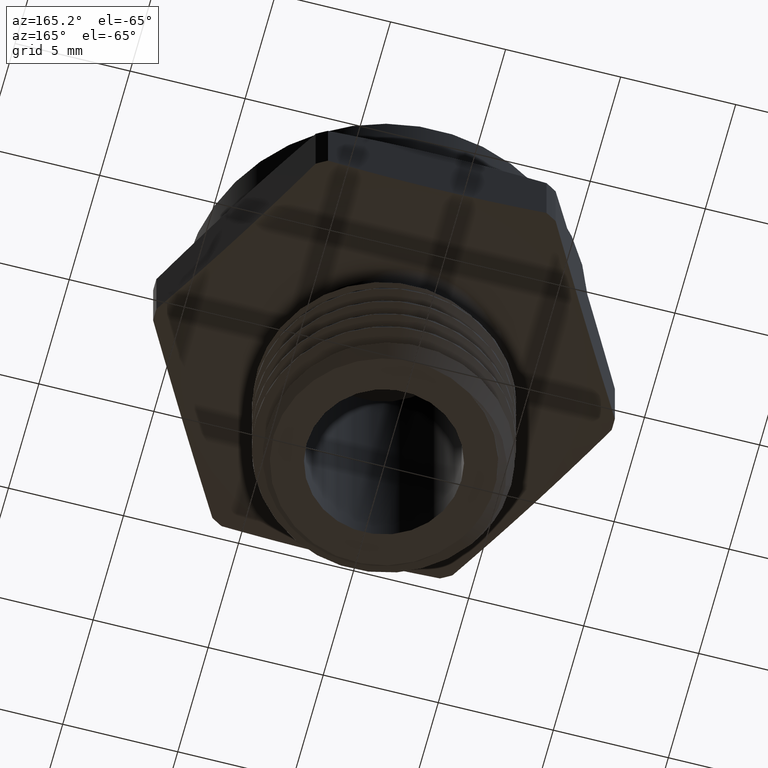
[diagram: clean part render]
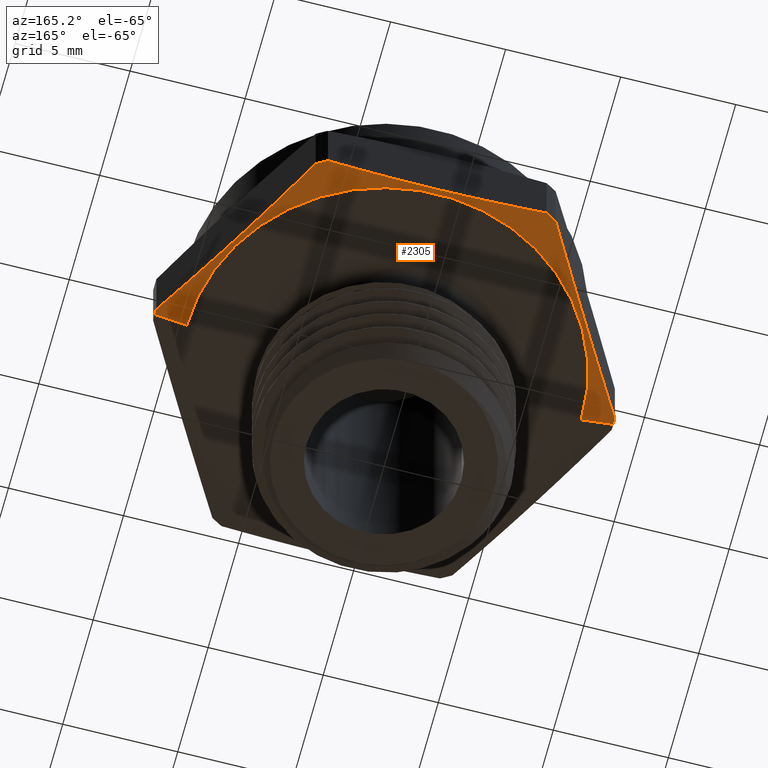
[diagram: same view with one face highlighted and labeled with its STEP entity id]
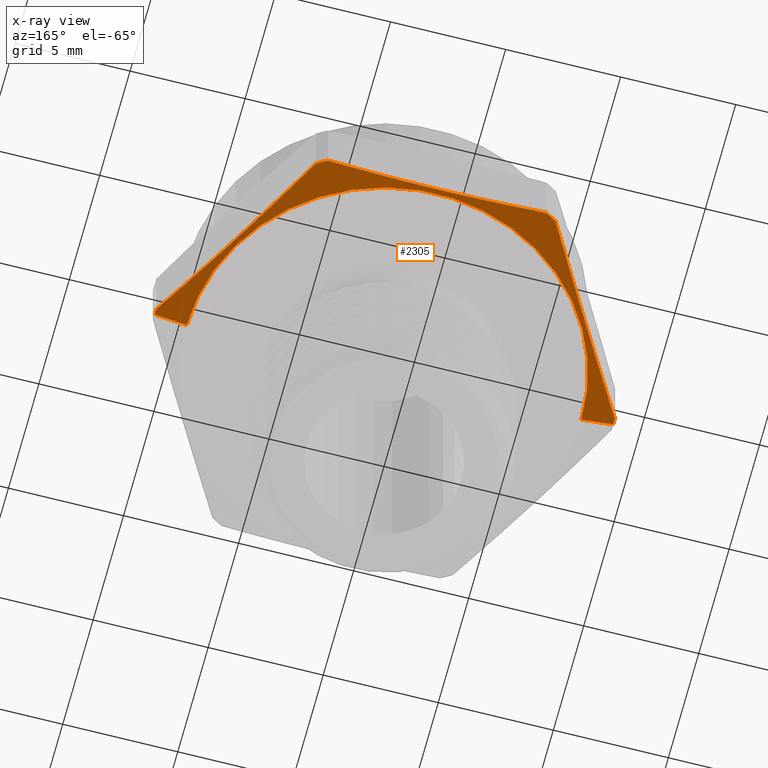
[diagram: x-ray of the same camera — body ghosted, the highlighted face saturated]
A machine part, auxiliary view. The second image highlights one B-rep face of the part: STEP entity #2305.
The next image is the same camera in x-ray: the body ghosted, the highlighted face saturated — about 0% of this face is hidden behind the body in this view.
In plain terms, the highlighted conical surface has half-angle 78 deg.
Its self-contained STEP definition (entity closure, byte-faithful):
#140 = FACE_OUTER_BOUND ( 'NONE', #242, .T. ) ;
#145 = CONICAL_SURFACE ( 'NONE', #2072, 0.3374999999999998000, 1.361356816555569600 ) ;
#182 = LINE ( 'NONE', #293, #186 ) ;
#185 = CIRCLE ( 'NONE', #2037, 0.3374999999999998000 ) ;
#186 = VECTOR ( 'NONE', #291, 39.37007874015748100 ) ;
#187 = CIRCLE ( 'NONE', #2038, 0.3923716857408415800 ) ;
#190 = CIRCLE ( 'NONE', #2042, 0.3923716857408415800 ) ;
#191 = CIRCLE ( 'NONE', #2041, 0.3923716857408415800 ) ;
#194 = CIRCLE ( 'NONE', #2043, 0.3923716857408415800 ) ;
#196 = LINE ( 'NONE', #322, #198 ) ;
#198 = VECTOR ( 'NONE', #318, 39.37007874015748100 ) ;
#242 = EDGE_LOOP ( 'NONE', ( #2782, #2783, #2784, #2785, #2786, #919, #920, #921, #922, #923 ) ) ;
#291 = DIRECTION ( 'NONE',  ( 0.9781476007338040200, 0.0000000000000000000, 0.2079116908177665300 ) ) ;
#293 = CARTESIAN_POINT ( 'NONE',  ( 0.3374999999999998000, 0.0000000000000000000, 0.0000000000000000000 ) ) ;
#297 = CARTESIAN_POINT ( 'NONE',  ( -0.3610778099297727300, 0.06459488771593470400, 0.005355784006606453800 ) ) ;
#298 = CARTESIAN_POINT ( 'NONE',  ( -0.2987787643056311600, 0.1724999999999996300, -0.002167435581555904200 ) ) ;
#299 = CARTESIAN_POINT ( 'NONE',  ( 5.061689266483738000E-033, 0.0000000000000000000, 4.133182947122303000E-017 ) ) ;
#300 = DIRECTION ( 'NONE',  ( -1.224646799147349800E-016, -0.0000000000000000000, -1.000000000000000000 ) ) ;
#301 = DIRECTION ( 'NONE',  ( -1.000000000000000000, 0.0000000000000000000, 1.224646799147349800E-016 ) ) ;
#302 = CARTESIAN_POINT ( 'NONE',  ( -0.3922273327418435700, 0.01064233157390219100, 0.01166333685411182100 ) ) ;
#303 = CARTESIAN_POINT ( 'NONE',  ( -0.2364797186814895600, 0.2804051122840647300, 0.005355784006606442500 ) ) ;
#304 = CARTESIAN_POINT ( 'NONE',  ( -0.2053301958694187200, 0.3343576684260971500, 0.01166333685411172200 ) ) ;
#306 = CARTESIAN_POINT ( 'NONE',  ( 1.428346814576530300E-018, 0.0000000000000000000, 0.01166333685411177200 ) ) ;
#307 = DIRECTION ( 'NONE',  ( -1.224646799147349800E-016, -0.0000000000000000000, -1.000000000000000000 ) ) ;
#308 = DIRECTION ( 'NONE',  ( -1.000000000000000000, 0.0000000000000000000, 1.251055960969031300E-016 ) ) ;
#318 = DIRECTION ( 'NONE',  ( -0.9781476007338040200, 1.197885328332316500E-016, 0.2079116908177667500 ) ) ;
#319 = CARTESIAN_POINT ( 'NONE',  ( 1.428346814576530300E-018, 0.0000000000000000000, 0.01166333685411177200 ) ) ;
#320 = DIRECTION ( 'NONE',  ( -1.224646799147349800E-016, -0.0000000000000000000, -1.000000000000000000 ) ) ;
#321 = DIRECTION ( 'NONE',  ( -1.000000000000000000, 0.0000000000000000000, 1.251055960969031300E-016 ) ) ;
#322 = CARTESIAN_POINT ( 'NONE',  ( -0.3374999999999998000, 4.133182947122314700E-017, 8.266365894244606000E-017 ) ) ;
#323 = CARTESIAN_POINT ( 'NONE',  ( 0.2364797186814898400, 0.2804051122840645100, 0.005355784006606438200 ) ) ;
#324 = CARTESIAN_POINT ( 'NONE',  ( 0.2987787643056312200, 0.1725000000000001800, -0.002167435581555885200 ) ) ;
#325 = CARTESIAN_POINT ( 'NONE',  ( 1.428346814576530300E-018, 0.0000000000000000000, 0.01166333685411177200 ) ) ;
#326 = DIRECTION ( 'NONE',  ( -1.224646799147349800E-016, -0.0000000000000000000, -1.000000000000000000 ) ) ;
#327 = DIRECTION ( 'NONE',  ( -1.000000000000000000, 0.0000000000000000000, 1.251055960969031300E-016 ) ) ;
#328 = CARTESIAN_POINT ( 'NONE',  ( 0.2053301958694191700, 0.3343576684260967700, 0.01166333685411174600 ) ) ;
#329 = CARTESIAN_POINT ( 'NONE',  ( 0.3610778099297729000, 0.06459488771593567500, 0.005355784006606413900 ) ) ;
#330 = CARTESIAN_POINT ( 'NONE',  ( 0.3922273327418435700, 0.01064233157390342100, 0.01166333685411172200 ) ) ;
#333 = CARTESIAN_POINT ( 'NONE',  ( 1.428346814576530300E-018, 0.0000000000000000000, 0.01166333685411177200 ) ) ;
#334 = DIRECTION ( 'NONE',  ( -1.224646799147349800E-016, -0.0000000000000000000, -1.000000000000000000 ) ) ;
#335 = DIRECTION ( 'NONE',  ( -1.000000000000000000, 0.0000000000000000000, 1.251055960969031300E-016 ) ) ;
#336 = CARTESIAN_POINT ( 'NONE',  ( -0.1245142236501595400, 0.3450000000000000300, 0.005960855220275375300 ) ) ;
#340 = CARTESIAN_POINT ( 'NONE',  ( -0.1557582013415370600, 0.3450000000000000300, 0.008510632354253096200 ) ) ;
#341 = CARTESIAN_POINT ( 'NONE',  ( -0.1868971368724244300, 0.3450000000000000300, 0.01166333685411179500 ) ) ;
#342 = CARTESIAN_POINT ( 'NONE',  ( -0.06212854920684172900, 0.3449999999999999200, 0.002498373263569564100 ) ) ;
#343 = CARTESIAN_POINT ( 'NONE',  ( -0.03095420502948804200, 0.3450000000000000800, 0.001590354296628857100 ) ) ;
#344 = CARTESIAN_POINT ( 'NONE',  ( 0.06250737541414196100, 0.3450000000000000300, 0.001601850883293445500 ) ) ;
#345 = CARTESIAN_POINT ( 'NONE',  ( 0.1247306372216187400, 0.3450000000000000800, 0.005369203806591569100 ) ) ;
#346 = CARTESIAN_POINT ( 'NONE',  ( 0.1868971368724243200, 0.3450000000000000300, 0.01166333685411172200 ) ) ;
#919 = ORIENTED_EDGE ( 'NONE', *, *, #1943, .T. ) ;
#920 = ORIENTED_EDGE ( 'NONE', *, *, #1940, .T. ) ;
#921 = ORIENTED_EDGE ( 'NONE', *, *, #1939, .T. ) ;
#922 = ORIENTED_EDGE ( 'NONE', *, *, #1937, .T. ) ;
#923 = ORIENTED_EDGE ( 'NONE', *, *, #1928, .F. ) ;
#1720 = DIRECTION ( 'NONE',  ( 1.000000000000000000, 0.0000000000000000000, -1.224646799147349800E-016 ) ) ;
#1721 = CARTESIAN_POINT ( 'NONE',  ( 5.061689266483738000E-033, 0.0000000000000000000, 4.133182947122303000E-017 ) ) ;
#1722 = DIRECTION ( 'NONE',  ( 1.224646799147349800E-016, 0.0000000000000000000, 1.000000000000000000 ) ) ;
#1766 = CARTESIAN_POINT ( 'NONE',  ( 0.3923716857408415800, 0.0000000000000000000, 0.01166333685411172600 ) ) ;
#1767 = CARTESIAN_POINT ( 'NONE',  ( 0.3922273327418435700, 0.01064233157390342100, 0.01166333685411172200 ) ) ;
#1768 = CARTESIAN_POINT ( 'NONE',  ( 0.2053301958694191700, 0.3343576684260967700, 0.01166333685411174600 ) ) ;
#1769 = CARTESIAN_POINT ( 'NONE',  ( 0.1868971368724243200, 0.3450000000000000300, 0.01166333685411172200 ) ) ;
#1770 = CARTESIAN_POINT ( 'NONE',  ( -0.1868971368724244300, 0.3450000000000000300, 0.01166333685411179500 ) ) ;
#1772 = CARTESIAN_POINT ( 'NONE',  ( -0.2053301958694187200, 0.3343576684260971500, 0.01166333685411172200 ) ) ;
#1773 = CARTESIAN_POINT ( 'NONE',  ( -0.3922273327418435700, 0.01064233157390219100, 0.01166333685411182100 ) ) ;
#1774 = CARTESIAN_POINT ( 'NONE',  ( -0.3923716857408415800, 0.0000000000000000000, 0.01166333685411182100 ) ) ;
#1776 = CARTESIAN_POINT ( 'NONE',  ( 0.3374999999999998000, 0.0000000000000000000, 0.0000000000000000000 ) ) ;
#1784 = CARTESIAN_POINT ( 'NONE',  ( -0.3374999999999998000, 4.133182947122314700E-017, 8.266365894244606000E-017 ) ) ;
#1928 = EDGE_CURVE ( 'NONE', #2337, #2327, #182, .T. ) ;
#1929 = EDGE_CURVE ( 'NONE', #2348, #2337, #185, .T. ) ;
#1930 = EDGE_CURVE ( 'NONE', #2334, #2333, #2882, .T. ) ;
#1931 = EDGE_CURVE ( 'NONE', #2333, #2331, #187, .T. ) ;
#1935 = EDGE_CURVE ( 'NONE', #2335, #2334, #191, .T. ) ;
#1937 = EDGE_CURVE ( 'NONE', #2328, #2327, #190, .T. ) ;
#1938 = EDGE_CURVE ( 'NONE', #2348, #2335, #196, .T. ) ;
#1939 = EDGE_CURVE ( 'NONE', #2329, #2328, #2883, .T. ) ;
#1940 = EDGE_CURVE ( 'NONE', #2330, #2329, #194, .T. ) ;
#1943 = EDGE_CURVE ( 'NONE', #2331, #2330, #2884, .T. ) ;
#2037 = AXIS2_PLACEMENT_3D ( 'NONE', #299, #300, #301 ) ;
#2038 = AXIS2_PLACEMENT_3D ( 'NONE', #306, #307, #308 ) ;
#2041 = AXIS2_PLACEMENT_3D ( 'NONE', #319, #320, #321 ) ;
#2042 = AXIS2_PLACEMENT_3D ( 'NONE', #325, #326, #327 ) ;
#2043 = AXIS2_PLACEMENT_3D ( 'NONE', #333, #334, #335 ) ;
#2072 = AXIS2_PLACEMENT_3D ( 'NONE', #1721, #1722, #1720 ) ;
#2305 = ADVANCED_FACE ( 'NONE', ( #140 ), #145, .T. ) ;
#2327 = VERTEX_POINT ( 'NONE', #1766 ) ;
#2328 = VERTEX_POINT ( 'NONE', #1767 ) ;
#2329 = VERTEX_POINT ( 'NONE', #1768 ) ;
#2330 = VERTEX_POINT ( 'NONE', #1769 ) ;
#2331 = VERTEX_POINT ( 'NONE', #1770 ) ;
#2333 = VERTEX_POINT ( 'NONE', #1772 ) ;
#2334 = VERTEX_POINT ( 'NONE', #1773 ) ;
#2335 = VERTEX_POINT ( 'NONE', #1774 ) ;
#2337 = VERTEX_POINT ( 'NONE', #1776 ) ;
#2348 = VERTEX_POINT ( 'NONE', #1784 ) ;
#2782 = ORIENTED_EDGE ( 'NONE', *, *, #1929, .F. ) ;
#2783 = ORIENTED_EDGE ( 'NONE', *, *, #1938, .T. ) ;
#2784 = ORIENTED_EDGE ( 'NONE', *, *, #1935, .T. ) ;
#2785 = ORIENTED_EDGE ( 'NONE', *, *, #1930, .T. ) ;
#2786 = ORIENTED_EDGE ( 'NONE', *, *, #1931, .T. ) ;
#2882 = B_SPLINE_CURVE_WITH_KNOTS ( 'NONE', 3,
 ( #302, #297, #298, #303, #304 ),
 .UNSPECIFIED., .F., .F.,
 ( 4, 1, 4 ),
 ( 1.975061655722681600E-006, 0.004749162338215316300, 0.009496349614774914400 ),
 .UNSPECIFIED. ) ;
#2883 = B_SPLINE_CURVE_WITH_KNOTS ( 'NONE', 3,
 ( #328, #323, #324, #329, #330 ),
 .UNSPECIFIED., .F., .F.,
 ( 4, 1, 4 ),
 ( 1.975061656134189700E-006, 0.004749162338215710100, 0.009496349614775285600 ),
 .UNSPECIFIED. ) ;
#2884 = B_SPLINE_CURVE_WITH_KNOTS ( 'NONE', 3,
 ( #341, #340, #336, #342, #343, #344, #345, #346 ),
 .UNSPECIFIED., .F., .F.,
 ( 4, 2, 2, 4 ),
 ( 0.008708171646738423900, 0.01109108924511415700, 0.01347400684348988900, 0.01823984204024135800 ),
 .UNSPECIFIED. ) ;